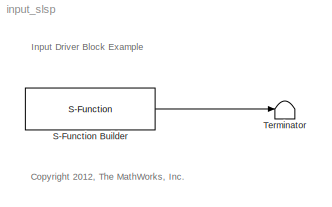
MODEL input_slsp
KIND model
BLOCK [S-Function] S-Function Builder
  CopyFcn = set_param(gcbh,'LinkStatus','none')
  EnableBusSupport = off
  FunctionName = sfcn_exin_slsp
  InitFcn = try, set_param(gcb,'FunctionName','sfcn_exin_slsp'), end
  OpenFcn = sfunctionwizard(gcbh)
  Parameters = uint8(4)
  Ports = [0, 1]
  PreSaveFcn = try, set_param(gcb,'FunctionName','sfcn_exin_slsp'), end
  SFunctionModules = sfcn_exin_slsp_wrapper
  SID = 6
  WizardData = DataTag0
BLOCK [Terminator] Terminator
  SID = 7
ANNOTATION (root): <copyright redacted>
ANNOTATION (root): Input Driver Block Example
LINE S-Function Builder:1 -> Terminator:1
